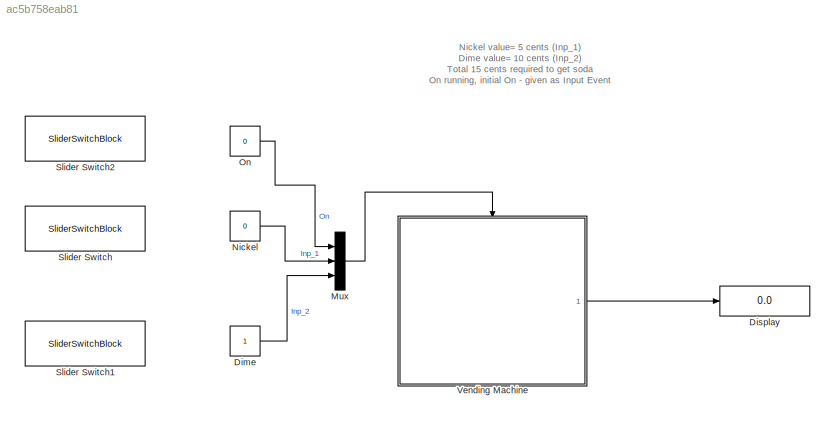
MODEL slx_ac5b758eab81
KIND model
CONFIG AbsTol = auto
CONFIG EnableMultiTasking = off
CONFIG FixedStep = auto
CONFIG MaxStep = auto
CONFIG MinStep = auto
CONFIG RelTol = 1e-3
CONFIG SampleTimeConstraint = Unconstrained
CONFIG Solver = VariableStepAuto
CONFIG SolverName = VariableStepAuto
CONFIG StartTime = 0.0
CONFIG StopTime = inf
BLOCK [Constant] Dime
BLOCK [Display] Display
  Decimation = 1
  Ports = [1]
BLOCK [Mux] Mux
  DisplayOption = bar
  Inputs = 3
  Ports = [3, 1]
BLOCK [Constant] Nickel
  Value = 0
BLOCK [Constant] On
  Value = 0
BLOCK [SliderSwitchBlock] Slider Switch
BLOCK [SliderSwitchBlock] Slider Switch1
BLOCK [SliderSwitchBlock] Slider Switch2
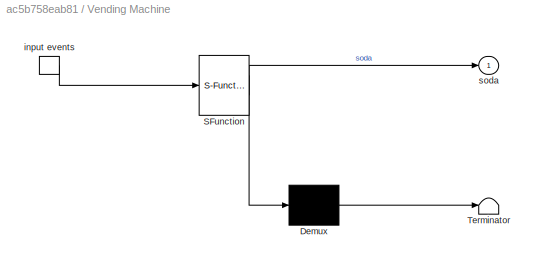
BLOCK [SubSystem] Vending Machine
  ErrorFcn = Stateflow.Translate.translate
  PermitHierarchicalResolution = ExplicitOnly
  Ports = [0, 1, 0, 1]
  RequestExecContextInheritance = off
  SFBlockType = Chart
  TreatAsAtomicUnit = on
BLOCK [Demux] Vending Machine/ Demux 
  Outputs = 1
  Ports = [1, 1]
BLOCK [S-Function] Vending Machine/ SFunction 
  EnableBusSupport = on
  FunctionName = sf_sfun
  PortCounts = [1 2]
  Ports = [1, 2]
  SFcnIsStateOwnerBlock = off
  SFunctionDeploymentMode = off
  Tag = Stateflow S-Function 3
BLOCK [Terminator] Vending Machine/ Terminator 
BLOCK [TriggerPort] Vending Machine/input events
  Ports = [0, 1]
  ShowOutputPort = on
  StatesWhenEnabling = held
  TriggerType = either
  VariantControl = (inherit)
BLOCK [Outport] Vending Machine/soda
ANNOTATION (root): Nickel value= 5 cents (Inp_1) Dime value= 10 cents (Inp_2) Total 15 cents required to get soda On running, initial On - given as Input Event
LINE Dime:1 -> Mux:3
LINE Mux:1 -> Vending Machine:trigger
LINE Nickel:1 -> Mux:2
LINE On:1 -> Mux:1
LINE Vending Machine:1 -> Display:1
CHART Vending Machine states=4 transitions=7
  STATE_LABEL 'Nickel value= 5 cents (Inp_1)\nDime value= 10 cents (Inp_2)\nTotal 15 cents required to get soda'
  STATE_LABEL 'coin_zero'
  STATE_LABEL 'coin_dime'
  STATE_LABEL 'coin_nickel'
CHART  states=0 transitions=0
